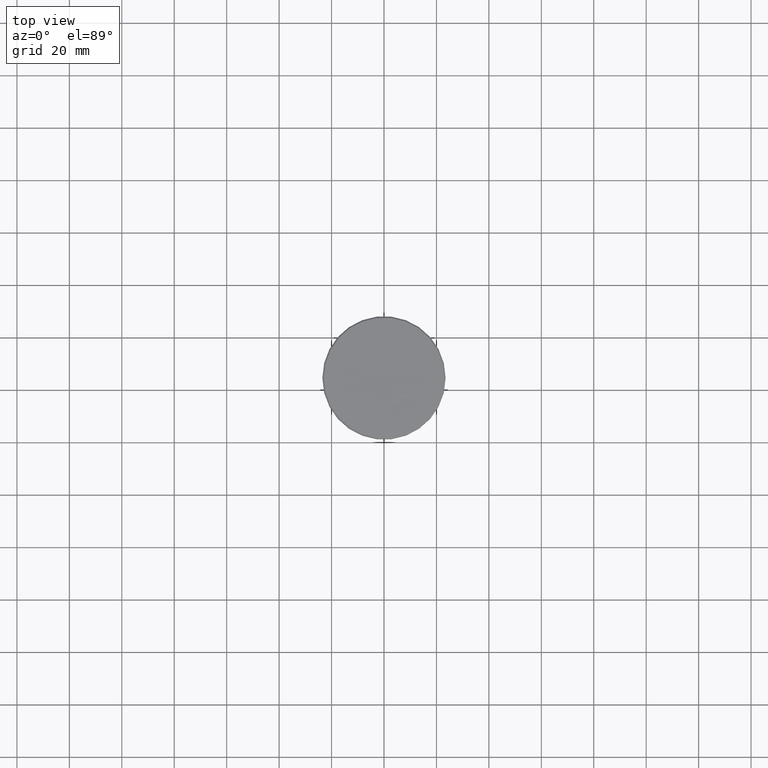
[diagram: clean part render]
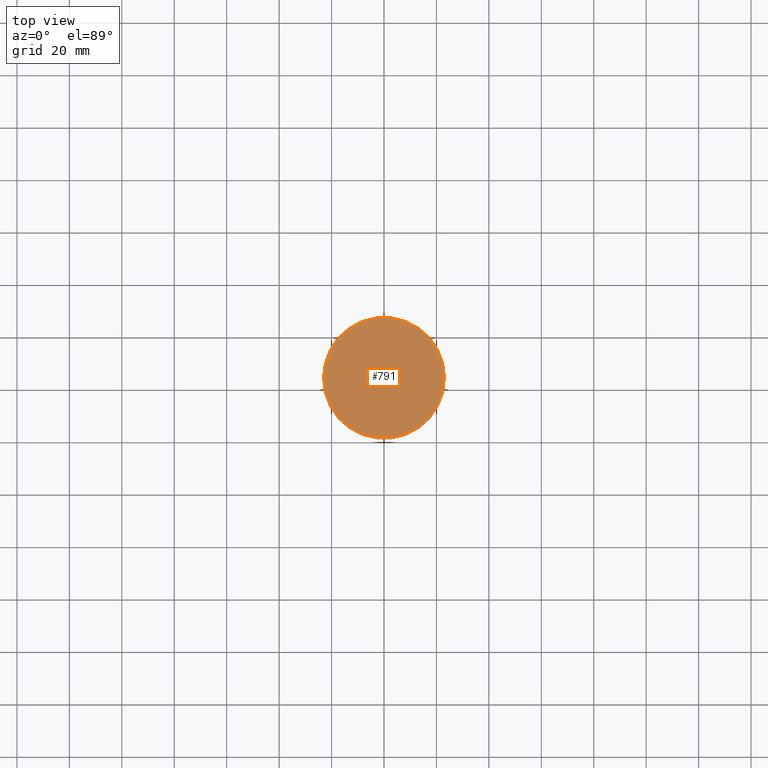
[diagram: same view with one face highlighted and labeled with its STEP entity id]
A machine part, top view. The second image highlights one B-rep face of the part: STEP entity #791.
In plain terms, the highlighted planar face has unit normal (0, -0, 1).
Its self-contained STEP definition (entity closure, byte-faithful):
#76 = EDGE_CURVE ( 'NONE', #357, #907, #490, .T. ) ;
#120 = ORIENTED_EDGE ( 'NONE', *, *, #1163, .T. ) ;
#134 = FACE_OUTER_BOUND ( 'NONE', #675, .T. ) ;
#301 = AXIS2_PLACEMENT_3D ( 'NONE', #836, #574, #910 ) ;
#357 = VERTEX_POINT ( 'NONE', #1084 ) ;
#490 = CIRCLE ( 'NONE', #1034, 23.00000000000002487 ) ;
#509 = PLANE ( 'NONE',  #740 ) ;
#514 = DIRECTION ( 'NONE',  ( 1.000000000000000000, 0.000000000000000000, 0.000000000000000000 ) ) ;
#559 = CARTESIAN_POINT ( 'NONE',  ( -23.00000000000002487, 0.000000000000000000, 0.000000000000000000 ) ) ;
#574 = DIRECTION ( 'NONE',  ( -0.000000000000000000, -0.000000000000000000, 1.000000000000000000 ) ) ;
#581 = CARTESIAN_POINT ( 'NONE',  ( 0.000000000000000000, 0.000000000000000000, 0.000000000000000000 ) ) ;
#597 = DIRECTION ( 'NONE',  ( 0.000000000000000000, -0.000000000000000000, 1.000000000000000000 ) ) ;
#675 = EDGE_LOOP ( 'NONE', ( #120, #1024 ) ) ;
#740 = AXIS2_PLACEMENT_3D ( 'NONE', #581, #597, #514 ) ;
#760 = CIRCLE ( 'NONE', #301, 23.00000000000002487 ) ;
#791 = ADVANCED_FACE ( 'NONE', ( #134 ), #509, .T. ) ;
#822 = DIRECTION ( 'NONE',  ( -0.000000000000000000, -0.000000000000000000, 1.000000000000000000 ) ) ;
#836 = CARTESIAN_POINT ( 'NONE',  ( 0.000000000000000000, 0.000000000000000000, 0.000000000000000000 ) ) ;
#907 = VERTEX_POINT ( 'NONE', #559 ) ;
#910 = DIRECTION ( 'NONE',  ( 1.000000000000000000, 0.000000000000000000, 0.000000000000000000 ) ) ;
#997 = CARTESIAN_POINT ( 'NONE',  ( 0.000000000000000000, 0.000000000000000000, 0.000000000000000000 ) ) ;
#1024 = ORIENTED_EDGE ( 'NONE', *, *, #76, .T. ) ;
#1034 = AXIS2_PLACEMENT_3D ( 'NONE', #997, #822, #1086 ) ;
#1084 = CARTESIAN_POINT ( 'NONE',  ( 23.00000000000002487, 2.847303808017597717E-15, 0.000000000000000000 ) ) ;
#1086 = DIRECTION ( 'NONE',  ( 1.000000000000000000, 0.000000000000000000, 0.000000000000000000 ) ) ;
#1163 = EDGE_CURVE ( 'NONE', #907, #357, #760, .T. ) ;